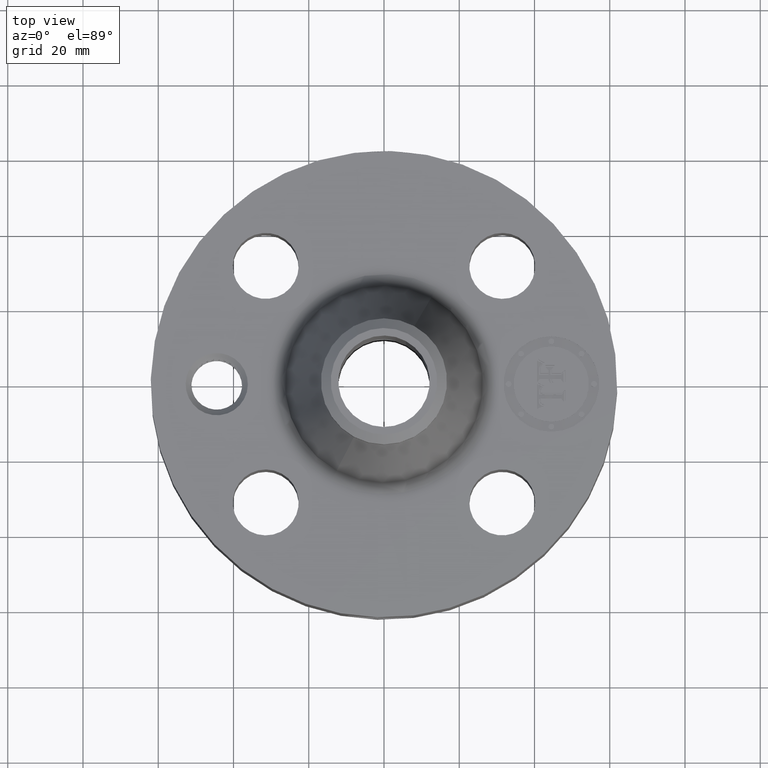
[diagram: clean part render]
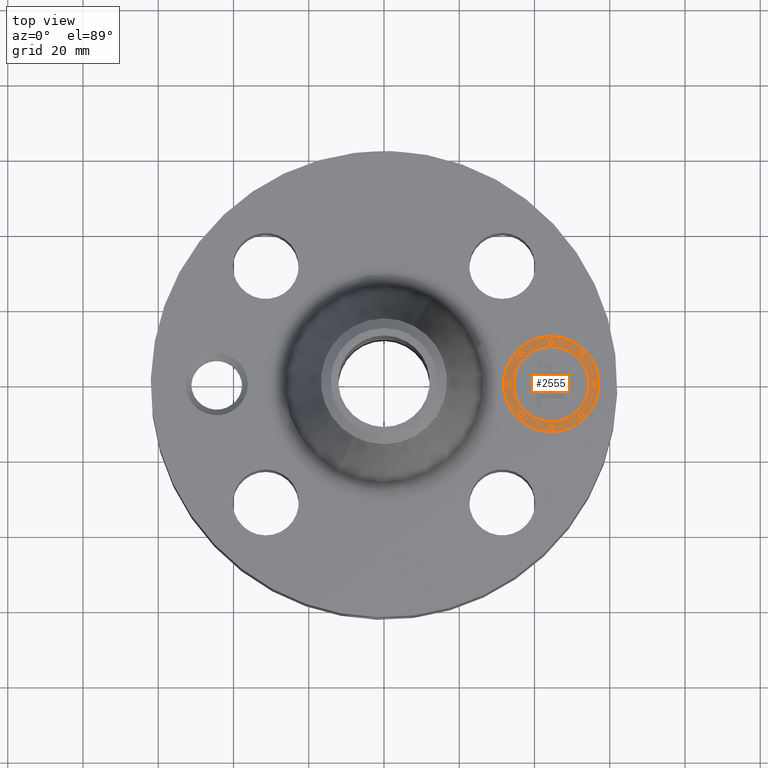
[diagram: same view with one face highlighted and labeled with its STEP entity id]
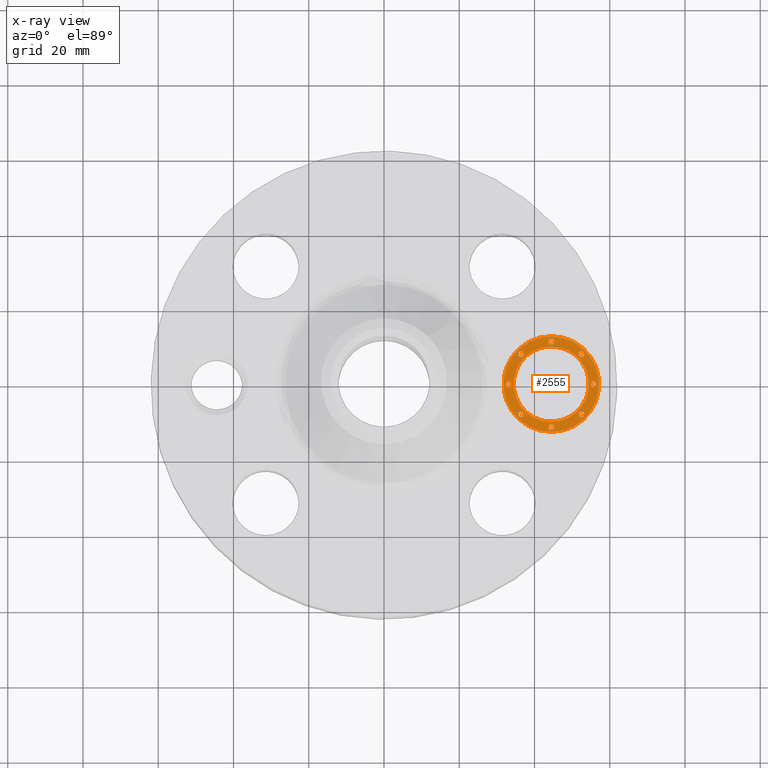
[diagram: x-ray of the same camera — body ghosted, the highlighted face saturated]
A machine part, top view. The second image highlights one B-rep face of the part: STEP entity #2555.
The next image is the same camera in x-ray: the body ghosted, the highlighted face saturated — about 0% of this face is hidden behind the body in this view.
In plain terms, the highlighted planar face has unit normal (0, 0, 1).
Its self-contained STEP definition (entity closure, byte-faithful):
#1802=AXIS2_PLACEMENT_3D('Circle Axis2P3D',#1800,#1801,$) ;
#1829=AXIS2_PLACEMENT_3D('Circle Axis2P3D',#1827,#1828,$) ;
#2387=AXIS2_PLACEMENT_3D('Plane Axis2P3D',#2384,#2385,#2386) ;
#2395=AXIS2_PLACEMENT_3D('Circle Axis2P3D',#2393,#2394,$) ;
#2404=AXIS2_PLACEMENT_3D('Circle Axis2P3D',#2402,#2403,$) ;
#2413=AXIS2_PLACEMENT_3D('Circle Axis2P3D',#2411,#2412,$) ;
#2422=AXIS2_PLACEMENT_3D('Circle Axis2P3D',#2420,#2421,$) ;
#2431=AXIS2_PLACEMENT_3D('Circle Axis2P3D',#2429,#2430,$) ;
#2440=AXIS2_PLACEMENT_3D('Circle Axis2P3D',#2438,#2439,$) ;
#2449=AXIS2_PLACEMENT_3D('Circle Axis2P3D',#2447,#2448,$) ;
#2458=AXIS2_PLACEMENT_3D('Circle Axis2P3D',#2456,#2457,$) ;
#2467=AXIS2_PLACEMENT_3D('Circle Axis2P3D',#2465,#2466,$) ;
#2476=AXIS2_PLACEMENT_3D('Circle Axis2P3D',#2474,#2475,$) ;
#2485=AXIS2_PLACEMENT_3D('Circle Axis2P3D',#2483,#2484,$) ;
#2494=AXIS2_PLACEMENT_3D('Circle Axis2P3D',#2492,#2493,$) ;
#2503=AXIS2_PLACEMENT_3D('Circle Axis2P3D',#2501,#2502,$) ;
#2512=AXIS2_PLACEMENT_3D('Circle Axis2P3D',#2510,#2511,$) ;
#2521=AXIS2_PLACEMENT_3D('Circle Axis2P3D',#2519,#2520,$) ;
#2530=AXIS2_PLACEMENT_3D('Circle Axis2P3D',#2528,#2529,$) ;
#2539=AXIS2_PLACEMENT_3D('Circle Axis2P3D',#2537,#2538,$) ;
#2548=AXIS2_PLACEMENT_3D('Circle Axis2P3D',#2546,#2547,$) ;
#1797=CARTESIAN_POINT('Vertex',(1.75000000001,-0.499999995002,1.54500000001)) ;
#1800=CARTESIAN_POINT('Axis2P3D Location',(1.75000000001,-4.38103225949E-015,1.54500000001)) ;
#1804=CARTESIAN_POINT('Vertex',(1.75000000001,0.499999995002,1.54500000001)) ;
#1827=CARTESIAN_POINT('Axis2P3D Location',(1.75000000001,-4.38103225949E-015,1.54500000001)) ;
#2384=CARTESIAN_POINT('Axis2P3D Location',(0.,0.,1.54500000001)) ;
#2393=CARTESIAN_POINT('Axis2P3D Location',(1.75000000001,-4.38103225949E-015,1.54500000001)) ;
#2397=CARTESIAN_POINT('Vertex',(1.75000000001,-0.393939390002,1.54500000001)) ;
#2399=CARTESIAN_POINT('Vertex',(1.75000000001,0.393939390002,1.54500000001)) ;
#2402=CARTESIAN_POINT('Axis2P3D Location',(1.75000000001,-4.38103225949E-015,1.54500000001)) ;
#2411=CARTESIAN_POINT('Axis2P3D Location',(1.30303030751,-5.65258331292E-015,1.54500000001)) ;
#2415=CARTESIAN_POINT('Vertex',(1.30303030751,-0.0303030300001,1.54500000001)) ;
#2417=CARTESIAN_POINT('Vertex',(1.30303030751,0.0303030300001,1.54500000001)) ;
#2420=CARTESIAN_POINT('Axis2P3D Location',(1.30303030751,-5.65258331292E-015,1.54500000001)) ;
#2429=CARTESIAN_POINT('Axis2P3D Location',(1.75000000001,0.446969692502,1.54500000001)) ;
#2433=CARTESIAN_POINT('Vertex',(1.75000000001,0.416666662502,1.54500000001)) ;
#2435=CARTESIAN_POINT('Vertex',(1.75000000001,0.477272722502,1.54500000001)) ;
#2438=CARTESIAN_POINT('Axis2P3D Location',(1.75000000001,0.446969692502,1.54500000001)) ;
#2447=CARTESIAN_POINT('Axis2P3D Location',(1.43394469945,0.316055300553,1.54500000001)) ;
#2451=CARTESIAN_POINT('Vertex',(1.43394469945,0.285752270553,1.54500000001)) ;
#2453=CARTESIAN_POINT('Vertex',(1.43394469945,0.346358330553,1.54500000001)) ;
#2456=CARTESIAN_POINT('Axis2P3D Location',(1.43394469945,0.316055300553,1.54500000001)) ;
#2465=CARTESIAN_POINT('Axis2P3D Location',(2.19696969251,7.34549412211E-015,1.54500000001)) ;
#2469=CARTESIAN_POINT('Vertex',(2.19696969251,-0.0303030300001,1.54500000001)) ;
#2471=CARTESIAN_POINT('Vertex',(2.19696969251,0.0303030300001,1.54500000001)) ;
#2474=CARTESIAN_POINT('Axis2P3D Location',(2.19696969251,7.34549412211E-015,1.54500000001)) ;
#2483=CARTESIAN_POINT('Axis2P3D Location',(2.06605530056,0.316055300553,1.54500000001)) ;
#2487=CARTESIAN_POINT('Vertex',(2.06605530056,0.285752270553,1.54500000001)) ;
#2489=CARTESIAN_POINT('Vertex',(2.06605530056,0.346358330553,1.54500000001)) ;
#2492=CARTESIAN_POINT('Axis2P3D Location',(2.06605530056,0.316055300553,1.54500000001)) ;
#2501=CARTESIAN_POINT('Axis2P3D Location',(1.75000000001,-0.446969692502,1.54500000001)) ;
#2505=CARTESIAN_POINT('Vertex',(1.75000000001,-0.416666662502,1.54500000001)) ;
#2507=CARTESIAN_POINT('Vertex',(1.75000000001,-0.477272722502,1.54500000001)) ;
#2510=CARTESIAN_POINT('Axis2P3D Location',(1.75000000001,-0.446969692502,1.54500000001)) ;
#2519=CARTESIAN_POINT('Axis2P3D Location',(1.43394469945,-0.316055300553,1.54500000001)) ;
#2523=CARTESIAN_POINT('Vertex',(1.43394469945,-0.285752270553,1.54500000001)) ;
#2525=CARTESIAN_POINT('Vertex',(1.43394469945,-0.346358330553,1.54500000001)) ;
#2528=CARTESIAN_POINT('Axis2P3D Location',(1.43394469945,-0.316055300553,1.54500000001)) ;
#2537=CARTESIAN_POINT('Axis2P3D Location',(2.06605530056,-0.316055300553,1.54500000001)) ;
#2541=CARTESIAN_POINT('Vertex',(2.06605530056,-0.285752270553,1.54500000001)) ;
#2543=CARTESIAN_POINT('Vertex',(2.06605530056,-0.346358330553,1.54500000001)) ;
#2546=CARTESIAN_POINT('Axis2P3D Location',(2.06605530056,-0.316055300553,1.54500000001)) ;
#1801=DIRECTION('Axis2P3D Direction',(0.,0.,0.0393700787402)) ;
#1828=DIRECTION('Axis2P3D Direction',(0.,0.,0.0393700787402)) ;
#2385=DIRECTION('Axis2P3D Direction',(0.,0.,0.0393700787402)) ;
#2386=DIRECTION('Axis2P3D XDirection',(0.0393700787402,0.,0.)) ;
#2394=DIRECTION('Axis2P3D Direction',(0.,0.,0.0393700787402)) ;
#2403=DIRECTION('Axis2P3D Direction',(0.,0.,0.0393700787402)) ;
#2412=DIRECTION('Axis2P3D Direction',(0.,0.,0.0393700787402)) ;
#2421=DIRECTION('Axis2P3D Direction',(0.,0.,0.0393700787402)) ;
#2430=DIRECTION('Axis2P3D Direction',(0.,0.,0.0393700787402)) ;
#2439=DIRECTION('Axis2P3D Direction',(0.,0.,0.0393700787402)) ;
#2448=DIRECTION('Axis2P3D Direction',(0.,0.,0.0393700787402)) ;
#2457=DIRECTION('Axis2P3D Direction',(0.,0.,0.0393700787402)) ;
#2466=DIRECTION('Axis2P3D Direction',(0.,0.,0.0393700787402)) ;
#2475=DIRECTION('Axis2P3D Direction',(0.,0.,0.0393700787402)) ;
#2484=DIRECTION('Axis2P3D Direction',(0.,0.,0.0393700787402)) ;
#2493=DIRECTION('Axis2P3D Direction',(0.,0.,0.0393700787402)) ;
#2502=DIRECTION('Axis2P3D Direction',(0.,0.,0.0393700787402)) ;
#2511=DIRECTION('Axis2P3D Direction',(0.,0.,0.0393700787402)) ;
#2520=DIRECTION('Axis2P3D Direction',(0.,0.,0.0393700787402)) ;
#2529=DIRECTION('Axis2P3D Direction',(0.,0.,0.0393700787402)) ;
#2538=DIRECTION('Axis2P3D Direction',(0.,0.,0.0393700787402)) ;
#2547=DIRECTION('Axis2P3D Direction',(0.,0.,0.0393700787402)) ;
#2390=ORIENTED_EDGE('',*,*,#1806,.T.) ;
#2391=ORIENTED_EDGE('',*,*,#1831,.T.) ;
#2408=ORIENTED_EDGE('',*,*,#2401,.F.) ;
#2409=ORIENTED_EDGE('',*,*,#2406,.F.) ;
#2426=ORIENTED_EDGE('',*,*,#2419,.F.) ;
#2427=ORIENTED_EDGE('',*,*,#2424,.F.) ;
#2444=ORIENTED_EDGE('',*,*,#2437,.F.) ;
#2445=ORIENTED_EDGE('',*,*,#2442,.F.) ;
#2462=ORIENTED_EDGE('',*,*,#2455,.F.) ;
#2463=ORIENTED_EDGE('',*,*,#2460,.F.) ;
#2480=ORIENTED_EDGE('',*,*,#2473,.F.) ;
#2481=ORIENTED_EDGE('',*,*,#2478,.F.) ;
#2498=ORIENTED_EDGE('',*,*,#2491,.F.) ;
#2499=ORIENTED_EDGE('',*,*,#2496,.F.) ;
#2516=ORIENTED_EDGE('',*,*,#2509,.F.) ;
#2517=ORIENTED_EDGE('',*,*,#2514,.F.) ;
#2534=ORIENTED_EDGE('',*,*,#2527,.F.) ;
#2535=ORIENTED_EDGE('',*,*,#2532,.F.) ;
#2552=ORIENTED_EDGE('',*,*,#2545,.F.) ;
#2553=ORIENTED_EDGE('',*,*,#2550,.F.) ;
#2410=FACE_BOUND('',#2407,.T.) ;
#2428=FACE_BOUND('',#2425,.T.) ;
#2446=FACE_BOUND('',#2443,.T.) ;
#2464=FACE_BOUND('',#2461,.T.) ;
#2482=FACE_BOUND('',#2479,.T.) ;
#2500=FACE_BOUND('',#2497,.T.) ;
#2518=FACE_BOUND('',#2515,.T.) ;
#2536=FACE_BOUND('',#2533,.T.) ;
#2554=FACE_BOUND('',#2551,.T.) ;
#2555=ADVANCED_FACE('PartBody',(#2392,#2410,#2428,#2446,#2464,#2482,#2500,#2518,#2536,#2554),#2388,.T.) ;
#1803=CIRCLE('generated circle',#1802,0.499999995002) ;
#1830=CIRCLE('generated circle',#1829,0.499999995002) ;
#2396=CIRCLE('generated circle',#2395,0.393939390002) ;
#2405=CIRCLE('generated circle',#2404,0.393939390002) ;
#2414=CIRCLE('generated circle',#2413,0.0303030300001) ;
#2423=CIRCLE('generated circle',#2422,0.0303030300001) ;
#2432=CIRCLE('generated circle',#2431,0.0303030300001) ;
#2441=CIRCLE('generated circle',#2440,0.0303030300001) ;
#2450=CIRCLE('generated circle',#2449,0.0303030300001) ;
#2459=CIRCLE('generated circle',#2458,0.0303030300001) ;
#2468=CIRCLE('generated circle',#2467,0.0303030300001) ;
#2477=CIRCLE('generated circle',#2476,0.0303030300001) ;
#2486=CIRCLE('generated circle',#2485,0.0303030300001) ;
#2495=CIRCLE('generated circle',#2494,0.0303030300001) ;
#2504=CIRCLE('generated circle',#2503,0.0303030300001) ;
#2513=CIRCLE('generated circle',#2512,0.0303030300001) ;
#2522=CIRCLE('generated circle',#2521,0.0303030300001) ;
#2531=CIRCLE('generated circle',#2530,0.0303030300001) ;
#2540=CIRCLE('generated circle',#2539,0.0303030300001) ;
#2549=CIRCLE('generated circle',#2548,0.0303030300001) ;
#1806=EDGE_CURVE('',#1805,#1798,#1803,.T.) ;
#1831=EDGE_CURVE('',#1798,#1805,#1830,.T.) ;
#2401=EDGE_CURVE('',#2398,#2400,#2396,.T.) ;
#2406=EDGE_CURVE('',#2400,#2398,#2405,.T.) ;
#2419=EDGE_CURVE('',#2416,#2418,#2414,.T.) ;
#2424=EDGE_CURVE('',#2418,#2416,#2423,.T.) ;
#2437=EDGE_CURVE('',#2434,#2436,#2432,.T.) ;
#2442=EDGE_CURVE('',#2436,#2434,#2441,.T.) ;
#2455=EDGE_CURVE('',#2452,#2454,#2450,.T.) ;
#2460=EDGE_CURVE('',#2454,#2452,#2459,.T.) ;
#2473=EDGE_CURVE('',#2470,#2472,#2468,.T.) ;
#2478=EDGE_CURVE('',#2472,#2470,#2477,.T.) ;
#2491=EDGE_CURVE('',#2488,#2490,#2486,.T.) ;
#2496=EDGE_CURVE('',#2490,#2488,#2495,.T.) ;
#2509=EDGE_CURVE('',#2506,#2508,#2504,.T.) ;
#2514=EDGE_CURVE('',#2508,#2506,#2513,.T.) ;
#2527=EDGE_CURVE('',#2524,#2526,#2522,.T.) ;
#2532=EDGE_CURVE('',#2526,#2524,#2531,.T.) ;
#2545=EDGE_CURVE('',#2542,#2544,#2540,.T.) ;
#2550=EDGE_CURVE('',#2544,#2542,#2549,.T.) ;
#2389=EDGE_LOOP('',(#2390,#2391)) ;
#2407=EDGE_LOOP('',(#2408,#2409)) ;
#2425=EDGE_LOOP('',(#2426,#2427)) ;
#2443=EDGE_LOOP('',(#2444,#2445)) ;
#2461=EDGE_LOOP('',(#2462,#2463)) ;
#2479=EDGE_LOOP('',(#2480,#2481)) ;
#2497=EDGE_LOOP('',(#2498,#2499)) ;
#2515=EDGE_LOOP('',(#2516,#2517)) ;
#2533=EDGE_LOOP('',(#2534,#2535)) ;
#2551=EDGE_LOOP('',(#2552,#2553)) ;
#2392=FACE_OUTER_BOUND('',#2389,.T.) ;
#2388=PLANE('',#2387) ;
#1798=VERTEX_POINT('',#1797) ;
#1805=VERTEX_POINT('',#1804) ;
#2398=VERTEX_POINT('',#2397) ;
#2400=VERTEX_POINT('',#2399) ;
#2416=VERTEX_POINT('',#2415) ;
#2418=VERTEX_POINT('',#2417) ;
#2434=VERTEX_POINT('',#2433) ;
#2436=VERTEX_POINT('',#2435) ;
#2452=VERTEX_POINT('',#2451) ;
#2454=VERTEX_POINT('',#2453) ;
#2470=VERTEX_POINT('',#2469) ;
#2472=VERTEX_POINT('',#2471) ;
#2488=VERTEX_POINT('',#2487) ;
#2490=VERTEX_POINT('',#2489) ;
#2506=VERTEX_POINT('',#2505) ;
#2508=VERTEX_POINT('',#2507) ;
#2524=VERTEX_POINT('',#2523) ;
#2526=VERTEX_POINT('',#2525) ;
#2542=VERTEX_POINT('',#2541) ;
#2544=VERTEX_POINT('',#2543) ;